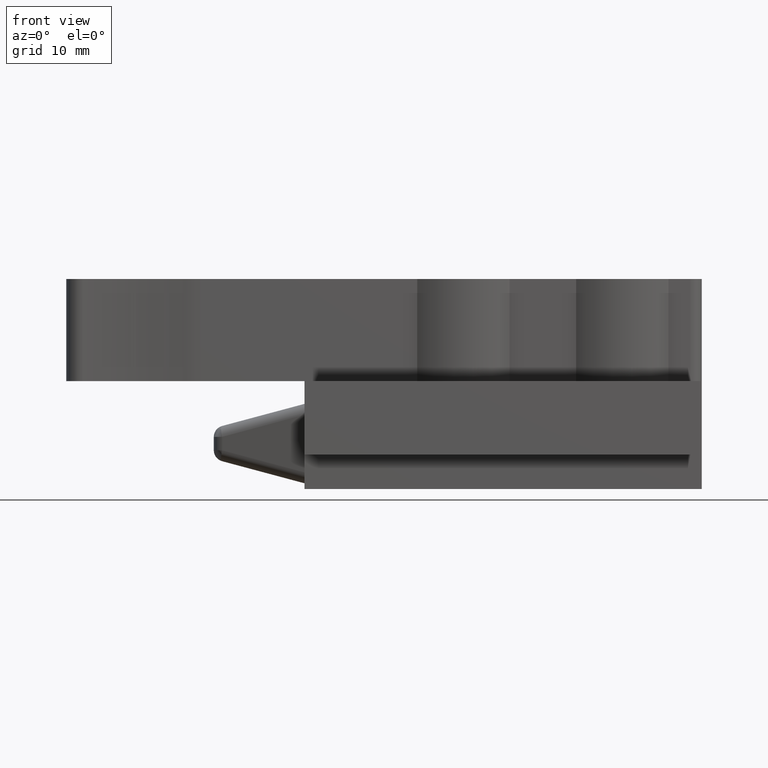
[diagram: clean part render]
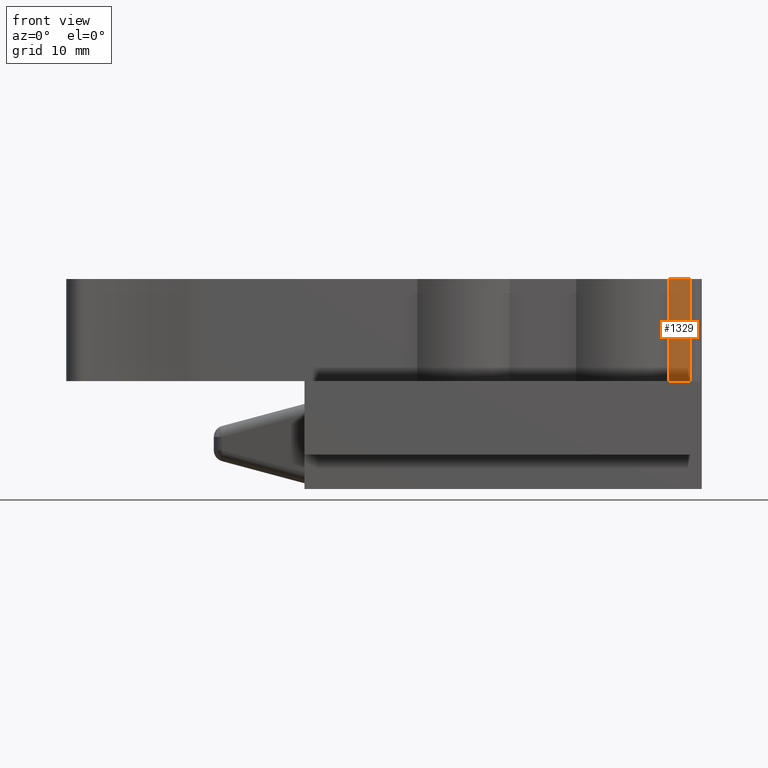
[diagram: same view with one face highlighted and labeled with its STEP entity id]
A machine part, front view. The second image highlights one B-rep face of the part: STEP entity #1329.
In plain terms, the highlighted planar face has unit normal (0, -1, 0).
Its self-contained STEP definition (entity closure, byte-faithful):
#392=CARTESIAN_POINT('',(-2.930294850975095,-6.000000000000005,18.500000000000000));
#393=VERTEX_POINT('',#392);
#401=CARTESIAN_POINT('',(-1.0,-6.000000000000005,18.500000000000000));
#402=VERTEX_POINT('',#401);
#403=CARTESIAN_POINT('',(-2.930294850975095,-6.000000000000005,18.500000000000000));
#404=DIRECTION('',(1.0,0.0,0.0));
#405=VECTOR('',#404,1.930294850975095);
#406=LINE('',#403,#405);
#407=EDGE_CURVE('',#393,#402,#406,.T.);
#1216=CARTESIAN_POINT('',(-1.0,-6.000000000000005,9.500000000000000));
#1217=VERTEX_POINT('',#1216);
#1225=CARTESIAN_POINT('',(-2.930294850975095,-6.000000000000005,9.500000000000000));
#1226=VERTEX_POINT('',#1225);
#1227=CARTESIAN_POINT('',(-2.930294850975095,-6.000000000000005,9.500000000000000));
#1228=DIRECTION('',(1.0,0.0,0.0));
#1229=VECTOR('',#1228,1.930294850975095);
#1230=LINE('',#1227,#1229);
#1231=EDGE_CURVE('',#1226,#1217,#1230,.T.);
#1304=CARTESIAN_POINT('',(-2.930294850975095,-6.000000000000005,9.500000000000000));
#1305=DIRECTION('',(0.0,0.0,1.0));
#1306=VECTOR('',#1305,9.0);
#1307=LINE('',#1304,#1306);
#1308=EDGE_CURVE('',#1226,#393,#1307,.T.);
#1313=CARTESIAN_POINT('',(-3.026809593523851,-6.000000000000005,9.050000000000001));
#1314=DIRECTION('',(0.0,-1.0,0.0));
#1315=DIRECTION('',(1.0,0.0,0.0));
#1316=AXIS2_PLACEMENT_3D('',#1313,#1314,#1315);
#1317=PLANE('',#1316);
#1318=ORIENTED_EDGE('',*,*,#1231,.T.);
#1319=CARTESIAN_POINT('',(-1.0,-6.000000000000005,9.500000000000000));
#1320=DIRECTION('',(0.0,0.0,1.0));
#1321=VECTOR('',#1320,9.0);
#1322=LINE('',#1319,#1321);
#1323=EDGE_CURVE('',#1217,#402,#1322,.T.);
#1324=ORIENTED_EDGE('',*,*,#1323,.T.);
#1325=ORIENTED_EDGE('',*,*,#407,.F.);
#1326=ORIENTED_EDGE('',*,*,#1308,.F.);
#1327=EDGE_LOOP('',(#1318,#1324,#1325,#1326));
#1328=FACE_OUTER_BOUND('',#1327,.T.);
#1329=ADVANCED_FACE('',(#1328),#1317,.T.);